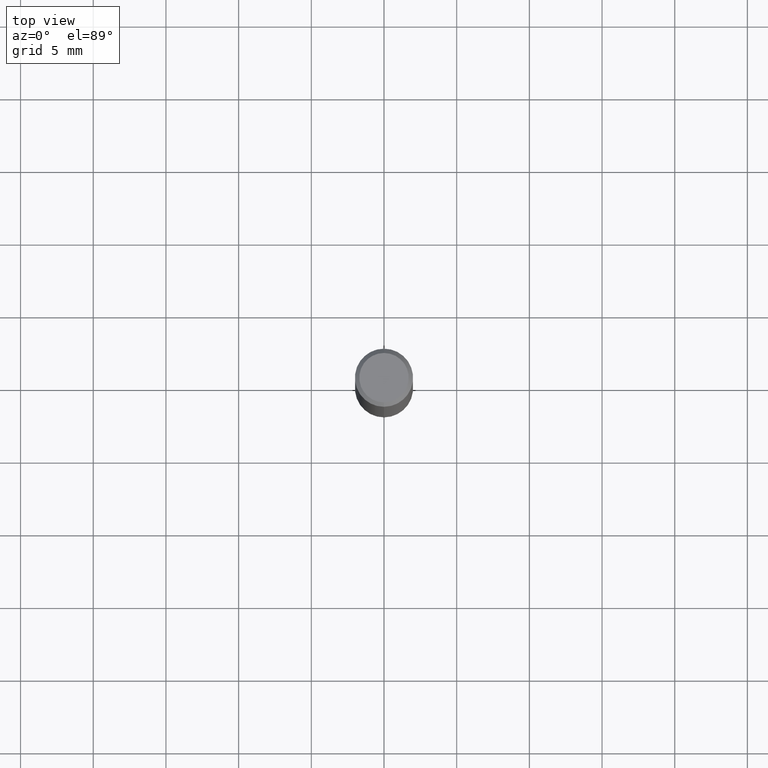
[diagram: clean part render]
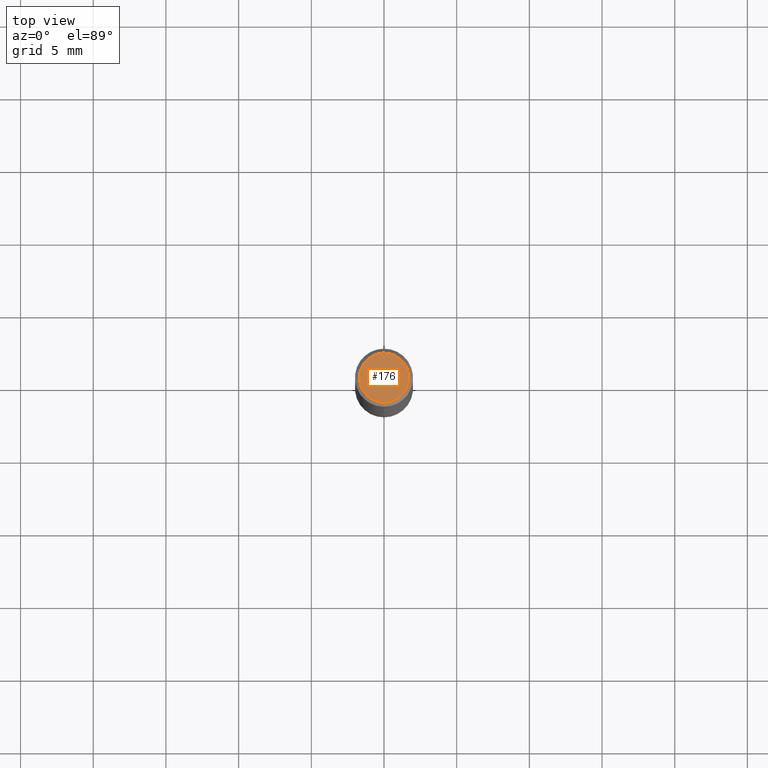
[diagram: same view with one face highlighted and labeled with its STEP entity id]
A machine part, top view. The second image highlights one B-rep face of the part: STEP entity #176.
In plain terms, the highlighted planar face has unit normal (-0, 0, 1).
Its self-contained STEP definition (entity closure, byte-faithful):
#104=VERTEX_POINT('',#257);
#106=EDGE_CURVE('',#230,#104,#259,.T.);
#162=EDGE_CURVE('',#104,#230,#324,.T.);
#176=ADVANCED_FACE('',(#341),#342,.T.);
#230=VERTEX_POINT('',#401);
#257=CARTESIAN_POINT('',(0.0,1.7,0.0));
#259=CIRCLE('',#424,1.7);
#324=CIRCLE('',#509,1.7);
#341=FACE_OUTER_BOUND('',#525,.T.);
#342=PLANE('',#526);
#401=CARTESIAN_POINT('',(2.08183080149804E-016,-1.7,0.0));
#424=AXIS2_PLACEMENT_3D('',#609,#610,#611);
#509=AXIS2_PLACEMENT_3D('',#704,#705,#706);
#525=EDGE_LOOP('',(#733,#734));
#526=AXIS2_PLACEMENT_3D('',#735,#736,#737);
#609=CARTESIAN_POINT('',(0.0,0.0,0.0));
#610=DIRECTION('',(0.0,0.0,-1.0));
#611=DIRECTION('',(0.0,1.0,0.0));
#704=CARTESIAN_POINT('',(0.0,0.0,0.0));
#705=DIRECTION('',(0.0,0.0,-1.0));
#706=DIRECTION('',(0.0,1.0,0.0));
#733=ORIENTED_EDGE('',*,*,#162,.F.);
#734=ORIENTED_EDGE('',*,*,#106,.F.);
#735=CARTESIAN_POINT('',(0.0,0.85,0.0));
#736=DIRECTION('',(-0.0,0.0,1.0));
#737=DIRECTION('',(0.0,-1.0,0.0));